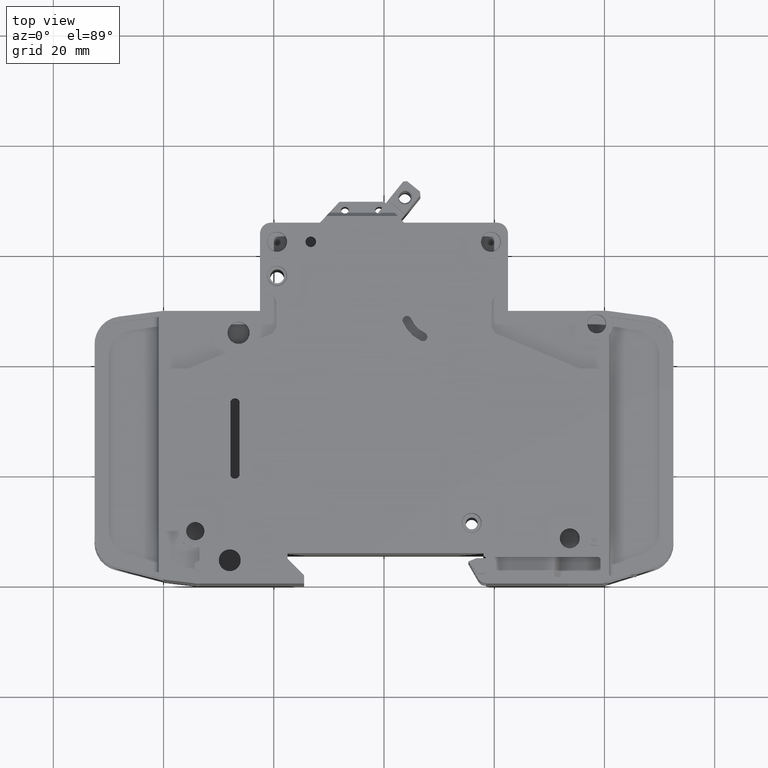
[diagram: clean part render]
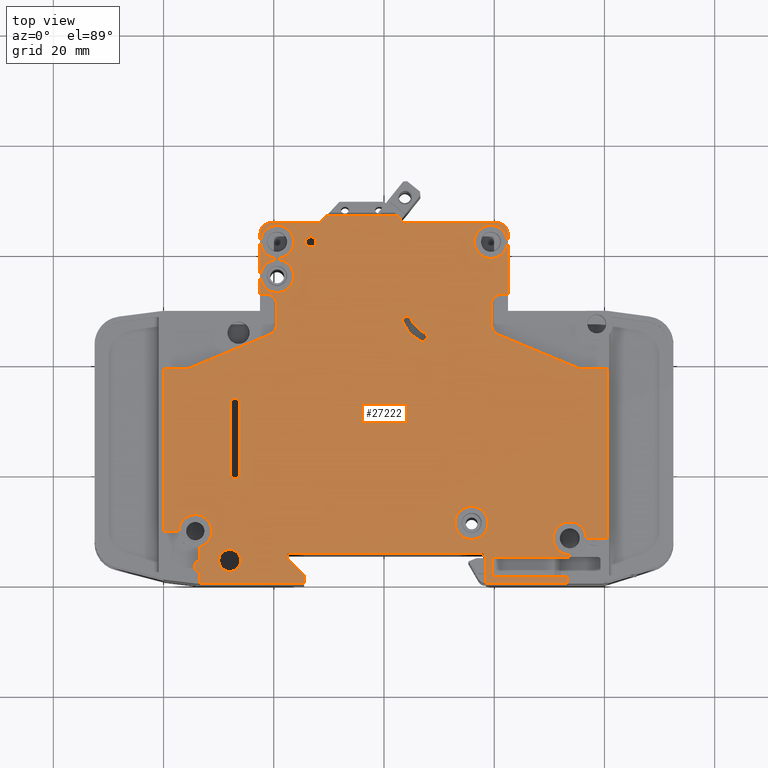
[diagram: same view with one face highlighted and labeled with its STEP entity id]
A machine part, top view. The second image highlights one B-rep face of the part: STEP entity #27222.
In plain terms, the highlighted planar face has unit normal (-0, 0, 1).
Its self-contained STEP definition (entity closure, byte-faithful):
#11 = EDGE_CURVE ( 'NONE', #45778, #3661, #33386, .T. ) ;
#141 = EDGE_CURVE ( 'NONE', #10007, #7064, #37529, .T. ) ;
#259 = VERTEX_POINT ( 'NONE', #40184 ) ;
#307 = DIRECTION ( 'NONE',  ( 1.000000000000000000, 0.0000000000000000000, 0.0000000000000000000 ) ) ;
#329 = DIRECTION ( 'NONE',  ( -0.0000000000000000000, 0.0000000000000000000, 1.000000000000000000 ) ) ;
#478 = DIRECTION ( 'NONE',  ( -0.0000000000000000000, 0.0000000000000000000, 1.000000000000000000 ) ) ;
#500 = VECTOR ( 'NONE', #28106, 1000.000000000000000 ) ;
#640 = EDGE_CURVE ( 'NONE', #25070, #26346, #5549, .T. ) ;
#645 = LINE ( 'NONE', #47615, #38605 ) ;
#883 = VERTEX_POINT ( 'NONE', #39705 ) ;
#934 = CARTESIAN_POINT ( 'NONE',  ( 20.60000000793647200, 55.79999999992195800, 8.750000000000000000 ) ) ;
#1002 = VECTOR ( 'NONE', #46928, 1000.000000000000000 ) ;
#1069 = DIRECTION ( 'NONE',  ( 0.0000000000000000000, -0.0000000000000000000, -1.000000000000000000 ) ) ;
#1110 = ORIENTED_EDGE ( 'NONE', *, *, #36869, .T. ) ;
#1352 = ORIENTED_EDGE ( 'NONE', *, *, #27600, .F. ) ;
#1426 = AXIS2_PLACEMENT_3D ( 'NONE', #3342, #29844, #7120 ) ;
#1539 = VERTEX_POINT ( 'NONE', #30404 ) ;
#1571 = ORIENTED_EDGE ( 'NONE', *, *, #7632, .T. ) ;
#1581 = CARTESIAN_POINT ( 'NONE',  ( 22.50000000000022000, -7.806255641895477900E-014, 8.750000000000000000 ) ) ;
#1702 = CIRCLE ( 'NONE', #30114, 3.000000000000002700 ) ;
#1789 = CIRCLE ( 'NONE', #13920, 3.000000000000002700 ) ;
#1822 = CARTESIAN_POINT ( 'NONE',  ( 52.89999999999999900, 11.00000000000000400, 8.750000000000000000 ) ) ;
#1843 = AXIS2_PLACEMENT_3D ( 'NONE', #2844, #29357, #6642 ) ;
#1879 = DIRECTION ( 'NONE',  ( -0.0000000000000000000, 0.0000000000000000000, 1.000000000000000000 ) ) ;
#1941 = CARTESIAN_POINT ( 'NONE',  ( 59.39999999986778800, 61.99999999992734700, 8.750000000000000000 ) ) ;
#1961 = EDGE_CURVE ( 'NONE', #13797, #883, #5389, .T. ) ;
#1965 = EDGE_CURVE ( 'NONE', #20600, #20111, #34419, .T. ) ;
#1967 = VERTEX_POINT ( 'NONE', #10883 ) ;
#2016 = ORIENTED_EDGE ( 'NONE', *, *, #8085, .T. ) ;
#2142 = CARTESIAN_POINT ( 'NONE',  ( 60.20000000000000300, 1.699999999984503000, 8.750000000000000000 ) ) ;
#2148 = CARTESIAN_POINT ( 'NONE',  ( 17.50000000000000000, 0.0000000000000000000, 8.750000000000000000 ) ) ;
#2171 = ORIENTED_EDGE ( 'NONE', *, *, #41514, .T. ) ;
#2182 = VECTOR ( 'NONE', #45746, 1000.000000000000100 ) ;
#2287 = DIRECTION ( 'NONE',  ( -0.0000000000000000000, 0.0000000000000000000, 1.000000000000000000 ) ) ;
#2380 = EDGE_CURVE ( 'NONE', #32505, #8355, #37430, .T. ) ;
#2602 = DIRECTION ( 'NONE',  ( 1.000000000000000000, 0.0000000000000000000, 0.0000000000000000000 ) ) ;
#2618 = VERTEX_POINT ( 'NONE', #37723 ) ;
#2739 = VERTEX_POINT ( 'NONE', #27296 ) ;
#2770 = VECTOR ( 'NONE', #15982, 1000.000000000000000 ) ;
#2844 = CARTESIAN_POINT ( 'NONE',  ( 58.49999999999850800, 5.299999999972984100, 8.750000000000000000 ) ) ;
#3267 = EDGE_CURVE ( 'NONE', #28935, #8455, #1789, .T. ) ;
#3291 = VERTEX_POINT ( 'NONE', #44075 ) ;
#3293 = CARTESIAN_POINT ( 'NONE',  ( 46.82499999999878100, 46.82500000000527500, 8.750000000000000000 ) ) ;
#3342 = CARTESIAN_POINT ( 'NONE',  ( 20.60000000793647200, 61.99999999992735400, 8.750000000000000000 ) ) ;
#3362 = LINE ( 'NONE', #41924, #2182 ) ;
#3475 = DIRECTION ( 'NONE',  ( -0.0000000000000000000, 0.0000000000000000000, 1.000000000000000000 ) ) ;
#3483 = CARTESIAN_POINT ( 'NONE',  ( 58.49999999999850800, 0.0000000000000000000, 8.750000000000000000 ) ) ;
#3572 = CIRCLE ( 'NONE', #7199, 0.5000000000000004400 ) ;
#3575 = CARTESIAN_POINT ( 'NONE',  ( 28.14999999999816500, 65.50000000000329700, 8.750000000000000000 ) ) ;
#3594 = EDGE_CURVE ( 'NONE', #34752, #15649, #36727, .T. ) ;
#3661 = VERTEX_POINT ( 'NONE', #8684 ) ;
#3782 = ORIENTED_EDGE ( 'NONE', *, *, #30044, .T. ) ;
#3864 = CARTESIAN_POINT ( 'NONE',  ( 19.27250432789876600, 45.18598618730563000, 8.750000000000000000 ) ) ;
#3879 = CARTESIAN_POINT ( 'NONE',  ( 75.12934078732412500, 39.15521354531781400, 8.750000000000000000 ) ) ;
#3977 = EDGE_CURVE ( 'NONE', #37970, #1539, #45595, .T. ) ;
#4018 = AXIS2_PLACEMENT_3D ( 'NONE', #31205, #8503, #35000 ) ;
#4263 = CARTESIAN_POINT ( 'NONE',  ( 44.89747573273771100, 48.04634435755303900, 8.750000000000000000 ) ) ;
#4436 = VECTOR ( 'NONE', #11555, 1000.000000000000000 ) ;
#4453 = VECTOR ( 'NONE', #39500, 1000.000000000000000 ) ;
#4743 = DIRECTION ( 'NONE',  ( 1.000000000000000000, 0.0000000000000000000, 0.0000000000000000000 ) ) ;
#4754 = VECTOR ( 'NONE', #24265, 1000.000000000000100 ) ;
#5221 = CARTESIAN_POINT ( 'NONE',  ( 59.70000000000000300, 0.0000000000000000000, 8.750000000000000000 ) ) ;
#5251 = VECTOR ( 'NONE', #23562, 1000.000000000000000 ) ;
#5389 = CIRCLE ( 'NONE', #45025, 0.7999999999998355100 ) ;
#5545 = VERTEX_POINT ( 'NONE', #3864 ) ;
#5549 = LINE ( 'NONE', #30408, #44678 ) ;
#5683 = DIRECTION ( 'NONE',  ( 0.0000000000000000000, -0.0000000000000000000, -1.000000000000000000 ) ) ;
#5750 = DIRECTION ( 'NONE',  ( 1.000000000000000000, 0.0000000000000000000, 0.0000000000000000000 ) ) ;
#5754 = ORIENTED_EDGE ( 'NONE', *, *, #1965, .F. ) ;
#5757 = ORIENTED_EDGE ( 'NONE', *, *, #14303, .T. ) ;
#5796 = CARTESIAN_POINT ( 'NONE',  ( 42.49473684210713000, 66.70000000000641200, 8.750000000000000000 ) ) ;
#5912 = EDGE_CURVE ( 'NONE', #34752, #28401, #17996, .T. ) ;
#5928 = DIRECTION ( 'NONE',  ( 1.000000000000000000, 0.0000000000000000000, 0.0000000000000000000 ) ) ;
#5985 = ORIENTED_EDGE ( 'NONE', *, *, #3594, .F. ) ;
#5995 = CIRCLE ( 'NONE', #10154, 2.999999999999995600 ) ;
#6025 = LINE ( 'NONE', #6330, #43993 ) ;
#6288 = VECTOR ( 'NONE', #11832, 1000.000000000000000 ) ;
#6304 = CARTESIAN_POINT ( 'NONE',  ( 56.39999999986779500, 61.99999999992734700, 8.750000000000000000 ) ) ;
#6306 = EDGE_CURVE ( 'NONE', #28401, #28682, #42990, .T. ) ;
#6314 = CARTESIAN_POINT ( 'NONE',  ( 4.098154884801252800, 39.00000000000000000, 8.750000000000000000 ) ) ;
#6330 = CARTESIAN_POINT ( 'NONE',  ( 1.050861388915706600E-013, 65.50000000000334000, 8.750000000000000000 ) ) ;
#6437 = CARTESIAN_POINT ( 'NONE',  ( -13.22342051912373200, 31.57831765761954300, 8.750000000000000000 ) ) ;
#6443 = EDGE_CURVE ( 'NONE', #43249, #41727, #26933, .T. ) ;
#6501 = VERTEX_POINT ( 'NONE', #16228 ) ;
#6529 = LINE ( 'NONE', #42190, #43283 ) ;
#6577 = LINE ( 'NONE', #18352, #25510 ) ;
#6642 = DIRECTION ( 'NONE',  ( 1.000000000000000000, 0.0000000000000000000, 0.0000000000000000000 ) ) ;
#6730 = VERTEX_POINT ( 'NONE', #17821 ) ;
#6770 = DIRECTION ( 'NONE',  ( -1.000000000000000000, 0.0000000000000000000, 0.0000000000000000000 ) ) ;
#6783 = CARTESIAN_POINT ( 'NONE',  ( 6.500000000000005300, 4.050000000000018500, 8.750000000000000000 ) ) ;
#6799 = EDGE_CURVE ( 'NONE', #48639, #33489, #41745, .T. ) ;
#6878 = VECTOR ( 'NONE', #6770, 1000.000000000000000 ) ;
#7064 = VERTEX_POINT ( 'NONE', #9065 ) ;
#7111 = CARTESIAN_POINT ( 'NONE',  ( 18.69999999999999600, 50.69999999999998900, 8.750000000000000000 ) ) ;
#7120 = DIRECTION ( 'NONE',  ( 1.000000000000000000, 0.0000000000000000000, 0.0000000000000000000 ) ) ;
#7199 = AXIS2_PLACEMENT_3D ( 'NONE', #11610, #38174, #15411 ) ;
#7227 = FACE_BOUND ( 'NONE', #22827, .T. ) ;
#7271 = VECTOR ( 'NONE', #31732, 1000.000000000000000 ) ;
#7291 = ORIENTED_EDGE ( 'NONE', *, *, #8728, .F. ) ;
#7429 = EDGE_LOOP ( 'NONE', ( #32889, #17226 ) ) ;
#7481 = CARTESIAN_POINT ( 'NONE',  ( 73.70000000000000300, 8.199999999999999300, 8.750000000000000000 ) ) ;
#7632 = EDGE_CURVE ( 'NONE', #18141, #32505, #41328, .T. ) ;
#7806 = VERTEX_POINT ( 'NONE', #44110 ) ;
#7812 = CIRCLE ( 'NONE', #22251, 0.7999999999998355100 ) ;
#7822 = VERTEX_POINT ( 'NONE', #44269 ) ;
#7837 = CIRCLE ( 'NONE', #41261, 2.999999999999999100 ) ;
#7842 = ORIENTED_EDGE ( 'NONE', *, *, #19470, .T. ) ;
#7900 = EDGE_CURVE ( 'NONE', #31549, #37970, #37117, .T. ) ;
#8085 = EDGE_CURVE ( 'NONE', #8455, #24953, #17461, .T. ) ;
#8355 = VERTEX_POINT ( 'NONE', #28633 ) ;
#8356 = DIRECTION ( 'NONE',  ( 0.0000000000000000000, -0.0000000000000000000, -1.000000000000000000 ) ) ;
#8421 = FACE_BOUND ( 'NONE', #45976, .T. ) ;
#8455 = VERTEX_POINT ( 'NONE', #33065 ) ;
#8503 = DIRECTION ( 'NONE',  ( -0.0000000000000000000, 0.0000000000000000000, 1.000000000000000000 ) ) ;
#8508 = LINE ( 'NONE', #3483, #9676 ) ;
#8603 = VERTEX_POINT ( 'NONE', #26412 ) ;
#8611 = EDGE_LOOP ( 'NONE', ( #7291, #48989 ) ) ;
#8626 = DIRECTION ( 'NONE',  ( -0.0000000000000000000, 0.0000000000000000000, 1.000000000000000000 ) ) ;
#8684 = CARTESIAN_POINT ( 'NONE',  ( 43.36107184997595700, 47.73375945476193000, 8.750000000000000000 ) ) ;
#8686 = CARTESIAN_POINT ( 'NONE',  ( 55.89999999999999900, 11.00000000000000400, 8.750000000000000000 ) ) ;
#8698 = VERTEX_POINT ( 'NONE', #34849 ) ;
#8728 = EDGE_CURVE ( 'NONE', #37885, #8698, #18630, .T. ) ;
#8861 = EDGE_CURVE ( 'NONE', #46489, #15649, #43058, .T. ) ;
#9041 = CARTESIAN_POINT ( 'NONE',  ( 80.50000000001294600, 8.200000000000043700, 8.749999999996021000 ) ) ;
#9065 = CARTESIAN_POINT ( 'NONE',  ( 59.70000000000000300, 1.699999999984503000, 8.750000000000000000 ) ) ;
#9118 = CARTESIAN_POINT ( 'NONE',  ( 43.79999999969146500, -2.051483660483898700E-010, 8.750000000000000000 ) ) ;
#9162 = EDGE_LOOP ( 'NONE', ( #42787, #15645, #49074, #5754, #45709, #1110, #32389, #2171, #42298, #34012, #13167, #42118, #17685, #27315, #29315, #5757, #22767, #39153, #46839, #47223, #16866, #7842, #47656, #36892, #37930, #33747, #40916, #3782, #1571, #18534, #13547, #12327, #22258, #10347, #23785, #28632, #40425, #22413, #37263, #45654, #18439, #16948, #2016, #29278, #9353, #39953, #13861, #44810, #13103, #5985, #37264, #46429, #41642, #12614, #32999, #45859, #22636 ) ) ;
#9255 = CIRCLE ( 'NONE', #16709, 0.9499999999999995100 ) ;
#9353 = ORIENTED_EDGE ( 'NONE', *, *, #38176, .T. ) ;
#9477 = VECTOR ( 'NONE', #47237, 1000.000000000000000 ) ;
#9518 = EDGE_CURVE ( 'NONE', #29282, #41727, #44761, .T. ) ;
#9521 = VECTOR ( 'NONE', #26610, 1000.000000000000000 ) ;
#9665 = EDGE_CURVE ( 'NONE', #8355, #19465, #10892, .T. ) ;
#9676 = VECTOR ( 'NONE', #11055, 1000.000000000000000 ) ;
#9722 = DIRECTION ( 'NONE',  ( 0.0000000000000000000, -1.000000000000000000, 0.0000000000000000000 ) ) ;
#9748 = CARTESIAN_POINT ( 'NONE',  ( 73.29999999999999700, 3.469446951953614200E-014, 8.750000000000000000 ) ) ;
#10007 = VERTEX_POINT ( 'NONE', #47067 ) ;
#10089 = DIRECTION ( 'NONE',  ( -0.0000000000000000000, 0.0000000000000000000, 1.000000000000000000 ) ) ;
#10094 = EDGE_CURVE ( 'NONE', #19465, #44086, #8508, .T. ) ;
#10113 = VERTEX_POINT ( 'NONE', #26338 ) ;
#10148 = DIRECTION ( 'NONE',  ( -0.0000000000000000000, 0.0000000000000000000, 1.000000000000000000 ) ) ;
#10154 = AXIS2_PLACEMENT_3D ( 'NONE', #28382, #5683, #32160 ) ;
#10216 = CIRCLE ( 'NONE', #25261, 2.999999999999999100 ) ;
#10253 = VERTEX_POINT ( 'NONE', #42422 ) ;
#10347 = ORIENTED_EDGE ( 'NONE', *, *, #28444, .T. ) ;
#10443 = CARTESIAN_POINT ( 'NONE',  ( 73.29999999999999700, 0.0000000000000000000, 8.750000000000000000 ) ) ;
#10450 = EDGE_CURVE ( 'NONE', #2739, #7064, #25650, .T. ) ;
#10517 = LINE ( 'NONE', #1581, #500 ) ;
#10525 = CARTESIAN_POINT ( 'NONE',  ( 0.0000000000000000000, 9.500000000000147400, 8.750000000000000000 ) ) ;
#10533 = CARTESIAN_POINT ( 'NONE',  ( 0.0000000000000000000, 0.0000000000000000000, 8.750000000000000000 ) ) ;
#10616 = EDGE_CURVE ( 'NONE', #23349, #38556, #27448, .T. ) ;
#10649 = CARTESIAN_POINT ( 'NONE',  ( 43.45146909758702900, 65.66126212262710700, 8.750000000000000000 ) ) ;
#10687 = AXIS2_PLACEMENT_3D ( 'NONE', #37565, #14801, #41384 ) ;
#10711 = DIRECTION ( 'NONE',  ( -0.0000000000000000000, 0.0000000000000000000, 1.000000000000000000 ) ) ;
#10846 = LINE ( 'NONE', #40768, #41148 ) ;
#10859 = EDGE_CURVE ( 'NONE', #2618, #10253, #7837, .T. ) ;
#10883 = CARTESIAN_POINT ( 'NONE',  ( 60.20000000000000300, 4.799999999944546400, 8.750000000000000000 ) ) ;
#10892 = CIRCLE ( 'NONE', #1843, 0.4999999999984877700 ) ;
#10899 = DIRECTION ( 'NONE',  ( 1.000000000000000000, 0.0000000000000000000, 0.0000000000000000000 ) ) ;
#10945 = DIRECTION ( 'NONE',  ( 0.0000000000000000000, -0.0000000000000000000, -1.000000000000000000 ) ) ;
#10967 = DIRECTION ( 'NONE',  ( 1.000000000000000000, 0.0000000000000000000, 0.0000000000000000000 ) ) ;
#11055 = DIRECTION ( 'NONE',  ( 0.0000000000000000000, -1.000000000000000000, 0.0000000000000000000 ) ) ;
#11062 = CARTESIAN_POINT ( 'NONE',  ( -1.589059672629979200E-016, 1.199999999984495500, 8.750000000000000000 ) ) ;
#11194 = CARTESIAN_POINT ( 'NONE',  ( 60.72749567212451200, 45.18598618730563000, 8.750000000000000000 ) ) ;
#11250 = DIRECTION ( 'NONE',  ( 1.000000000000000000, 0.0000000000000000000, 0.0000000000000000000 ) ) ;
#11310 = CARTESIAN_POINT ( 'NONE',  ( 2.750000000000020900, 9.500000000000008900, 8.750000000000000000 ) ) ;
#11555 = DIRECTION ( 'NONE',  ( -1.000000000000000000, 0.0000000000000000000, 0.0000000000000000000 ) ) ;
#11610 = CARTESIAN_POINT ( 'NONE',  ( 60.20000000000000300, 4.299999999944547300, 8.750000000000000000 ) ) ;
#11614 = EDGE_CURVE ( 'NONE', #36135, #29179, #5995, .T. ) ;
#11832 = DIRECTION ( 'NONE',  ( 1.000000000000000000, 2.967290156265997900E-014, 0.0000000000000000000 ) ) ;
#11845 = CARTESIAN_POINT ( 'NONE',  ( 12.94999999999999600, 32.75000000000000000, 8.750000000000000000 ) ) ;
#11876 = CARTESIAN_POINT ( 'NONE',  ( 62.49999999999850100, 0.0000000000000000000, 8.750000000000000000 ) ) ;
#12008 = VERTEX_POINT ( 'NONE', #15512 ) ;
#12038 = VERTEX_POINT ( 'NONE', #15832 ) ;
#12173 = VERTEX_POINT ( 'NONE', #17123 ) ;
#12235 = AXIS2_PLACEMENT_3D ( 'NONE', #15581, #42142, #19343 ) ;
#12265 = CARTESIAN_POINT ( 'NONE',  ( 43.81924165016565800, 66.00000000000177600, 8.750000000000000000 ) ) ;
#12327 = ORIENTED_EDGE ( 'NONE', *, *, #10094, .T. ) ;
#12399 = CIRCLE ( 'NONE', #12235, 1.999999999999998200 ) ;
#12451 = DIRECTION ( 'NONE',  ( 1.000000000000000000, 0.0000000000000000000, 0.0000000000000000000 ) ) ;
#12614 = ORIENTED_EDGE ( 'NONE', *, *, #24548, .T. ) ;
#12714 = EDGE_LOOP ( 'NONE', ( #14050, #33355, #38801, #40626, #13654 ) ) ;
#12917 = CARTESIAN_POINT ( 'NONE',  ( 3.035766082959468500E-013, 52.50000000000034800, 8.750000000000000000 ) ) ;
#12990 = DIRECTION ( 'NONE',  ( -0.0000000000000000000, 0.0000000000000000000, 1.000000000000000000 ) ) ;
#13053 = AXIS2_PLACEMENT_3D ( 'NONE', #32905, #10148, #36706 ) ;
#13103 = ORIENTED_EDGE ( 'NONE', *, *, #8861, .T. ) ;
#13167 = ORIENTED_EDGE ( 'NONE', *, *, #18517, .F. ) ;
#13398 = LINE ( 'NONE', #3293, #22274 ) ;
#13430 = LINE ( 'NONE', #42788, #22299 ) ;
#13547 = ORIENTED_EDGE ( 'NONE', *, *, #9665, .T. ) ;
#13564 = CARTESIAN_POINT ( 'NONE',  ( 58.49999999999850800, 4.799999999974497600, 8.750000000000000000 ) ) ;
#13654 = ORIENTED_EDGE ( 'NONE', *, *, #1961, .T. ) ;
#13776 = EDGE_CURVE ( 'NONE', #10113, #6730, #6577, .T. ) ;
#13797 = VERTEX_POINT ( 'NONE', #22541 ) ;
#13861 = ORIENTED_EDGE ( 'NONE', *, *, #21259, .T. ) ;
#13898 = DIRECTION ( 'NONE',  ( -1.000000000000000000, 1.604368532695653600E-015, 0.0000000000000000000 ) ) ;
#13920 = AXIS2_PLACEMENT_3D ( 'NONE', #17300, #43893, #21110 ) ;
#13941 = CARTESIAN_POINT ( 'NONE',  ( 62.50000000002325600, 52.49999999999998600, 8.750000000000000000 ) ) ;
#13945 = EDGE_CURVE ( 'NONE', #12008, #41286, #48663, .T. ) ;
#14001 = EDGE_CURVE ( 'NONE', #12173, #10113, #46301, .T. ) ;
#14050 = ORIENTED_EDGE ( 'NONE', *, *, #47859, .T. ) ;
#14094 = VECTOR ( 'NONE', #45937, 1000.000000000000000 ) ;
#14100 = CARTESIAN_POINT ( 'NONE',  ( 29.50526315788999600, 66.70000000000675300, 8.750000000000000000 ) ) ;
#14186 = CIRCLE ( 'NONE', #26983, 0.8500000000000000900 ) ;
#14223 = CARTESIAN_POINT ( 'NONE',  ( 49.50000000000064700, 49.99999999999789700, 8.750000000000000000 ) ) ;
#14258 = DIRECTION ( 'NONE',  ( 0.0000000000000000000, 1.000000000000000000, -0.0000000000000000000 ) ) ;
#14303 = EDGE_CURVE ( 'NONE', #24595, #1539, #6529, .T. ) ;
#14471 = VERTEX_POINT ( 'NONE', #16749 ) ;
#14556 = AXIS2_PLACEMENT_3D ( 'NONE', #39802, #17006, #43620 ) ;
#14768 = LINE ( 'NONE', #16616, #4754 ) ;
#14801 = DIRECTION ( 'NONE',  ( 0.0000000000000000000, -0.0000000000000000000, -1.000000000000000000 ) ) ;
#14868 = DIRECTION ( 'NONE',  ( 1.000000000000000000, 1.324216393875425600E-016, 0.0000000000000000000 ) ) ;
#15003 = AXIS2_PLACEMENT_3D ( 'NONE', #44045, #21235, #47867 ) ;
#15014 = CIRCLE ( 'NONE', #30636, 1.800000000000398600 ) ;
#15069 = CARTESIAN_POINT ( 'NONE',  ( 22.50000000000024200, 5.500000000000264700, 8.750000000000000000 ) ) ;
#15075 = AXIS2_PLACEMENT_3D ( 'NONE', #44811, #22038, #48615 ) ;
#15115 = CARTESIAN_POINT ( 'NONE',  ( 5.750000000000020400, 9.500000000000001800, 8.750000000000000000 ) ) ;
#15276 = LINE ( 'NONE', #46175, #5251 ) ;
#15411 = DIRECTION ( 'NONE',  ( 1.000000000000000000, 0.0000000000000000000, 0.0000000000000000000 ) ) ;
#15512 = CARTESIAN_POINT ( 'NONE',  ( 20.50000000000079600, 50.69999999999918600, 8.750000000000000000 ) ) ;
#15581 = CARTESIAN_POINT ( 'NONE',  ( 19.50000000000000000, 63.50000000000330400, 8.750000000000000000 ) ) ;
#15645 = ORIENTED_EDGE ( 'NONE', *, *, #25941, .T. ) ;
#15649 = VERTEX_POINT ( 'NONE', #33504 ) ;
#15653 = VERTEX_POINT ( 'NONE', #37296 ) ;
#15658 = DIRECTION ( 'NONE',  ( 1.000000000000000000, 0.0000000000000000000, 0.0000000000000000000 ) ) ;
#15827 = EDGE_CURVE ( 'NONE', #38239, #23349, #34301, .T. ) ;
#15832 = CARTESIAN_POINT ( 'NONE',  ( 4.870659212699157700, 39.15521354531782800, 8.750000000000000000 ) ) ;
#15925 = AXIS2_PLACEMENT_3D ( 'NONE', #12265, #38862, #16059 ) ;
#15982 = DIRECTION ( 'NONE',  ( 0.0000000000000000000, 1.000000000000000000, -0.0000000000000000000 ) ) ;
#16013 = LINE ( 'NONE', #46881, #27344 ) ;
#16059 = DIRECTION ( 'NONE',  ( 1.000000000000000000, 0.0000000000000000000, 0.0000000000000000000 ) ) ;
#16228 = CARTESIAN_POINT ( 'NONE',  ( 19.50000000000000000, 65.50000000000331100, 8.750000000000000000 ) ) ;
#16241 = ORIENTED_EDGE ( 'NONE', *, *, #15827, .T. ) ;
#16481 = CARTESIAN_POINT ( 'NONE',  ( -10.82500000000569100, 10.82500000000719200, 8.750000000000000000 ) ) ;
#16556 = VERTEX_POINT ( 'NONE', #3879 ) ;
#16616 = CARTESIAN_POINT ( 'NONE',  ( -17.27440989133155500, 15.91064068936652200, 8.750000000000000000 ) ) ;
#16709 = AXIS2_PLACEMENT_3D ( 'NONE', #33491, #10711, #37281 ) ;
#16749 = CARTESIAN_POINT ( 'NONE',  ( 28.19999999999816300, 65.45000000000330000, 8.750000000000000000 ) ) ;
#16866 = ORIENTED_EDGE ( 'NONE', *, *, #17188, .F. ) ;
#16948 = ORIENTED_EDGE ( 'NONE', *, *, #3267, .T. ) ;
#17006 = DIRECTION ( 'NONE',  ( 0.0000000000000000000, -0.0000000000000000000, -1.000000000000000000 ) ) ;
#17123 = CARTESIAN_POINT ( 'NONE',  ( 17.50000000000000000, 63.50000000000330400, 8.750000000000000000 ) ) ;
#17188 = EDGE_CURVE ( 'NONE', #30870, #15653, #22836, .T. ) ;
#17226 = ORIENTED_EDGE ( 'NONE', *, *, #11614, .T. ) ;
#17255 = FACE_BOUND ( 'NONE', #31161, .T. ) ;
#17270 = LINE ( 'NONE', #6437, #26198 ) ;
#17300 = CARTESIAN_POINT ( 'NONE',  ( 73.70000000000000300, 8.199999999999999300, 8.750000000000000000 ) ) ;
#17372 = AXIS2_PLACEMENT_3D ( 'NONE', #8686, #35202, #12451 ) ;
#17413 = CARTESIAN_POINT ( 'NONE',  ( 20.50000000000082100, 47.03077264198781600, 8.750000000000000000 ) ) ;
#17453 = AXIS2_PLACEMENT_3D ( 'NONE', #45701, #22927, #307 ) ;
#17461 = LINE ( 'NONE', #30760, #6288 ) ;
#17521 = CIRCLE ( 'NONE', #17372, 3.000000000000002700 ) ;
#17527 = CARTESIAN_POINT ( 'NONE',  ( 59.50000000002247400, 47.03077264198788000, 8.750000000000000000 ) ) ;
#17592 = DIRECTION ( 'NONE',  ( 0.0000000000000000000, -1.000000000000000000, 0.0000000000000000000 ) ) ;
#17685 = ORIENTED_EDGE ( 'NONE', *, *, #37581, .F. ) ;
#17809 = ORIENTED_EDGE ( 'NONE', *, *, #20547, .T. ) ;
#17821 = CARTESIAN_POINT ( 'NONE',  ( 18.69999999999999600, 52.49999999999998600, 8.750000000000000000 ) ) ;
#17969 = DIRECTION ( 'NONE',  ( -0.6774757547513893300, 0.7355451051594560400, 0.0000000000000000000 ) ) ;
#17989 = DIRECTION ( 'NONE',  ( 1.000000000000000000, 4.205390244792413100E-015, 0.0000000000000000000 ) ) ;
#17996 = LINE ( 'NONE', #12917, #37064 ) ;
#17999 = DIRECTION ( 'NONE',  ( -3.469446951472634300E-014, 1.000000000000000000, -0.0000000000000000000 ) ) ;
#18141 = VERTEX_POINT ( 'NONE', #15069 ) ;
#18298 = ORIENTED_EDGE ( 'NONE', *, *, #10616, .T. ) ;
#18352 = CARTESIAN_POINT ( 'NONE',  ( 0.0000000000000000000, 52.49999999999998600, 8.750000000000000000 ) ) ;
#18392 = FACE_OUTER_BOUND ( 'NONE', #9162, .T. ) ;
#18399 = ORIENTED_EDGE ( 'NONE', *, *, #19111, .F. ) ;
#18439 = ORIENTED_EDGE ( 'NONE', *, *, #25857, .T. ) ;
#18445 = DIRECTION ( 'NONE',  ( 0.0000000000000000000, -0.0000000000000000000, -1.000000000000000000 ) ) ;
#18517 = EDGE_CURVE ( 'NONE', #12008, #6730, #15014, .T. ) ;
#18534 = ORIENTED_EDGE ( 'NONE', *, *, #2380, .T. ) ;
#18630 = CIRCLE ( 'NONE', #4018, 0.9499999999563018000 ) ;
#18852 = DIRECTION ( 'NONE',  ( 1.000000000000000000, 0.0000000000000000000, 0.0000000000000000000 ) ) ;
#18860 = CARTESIAN_POINT ( 'NONE',  ( 0.0000000000000000000, 4.799999999944547300, 8.750000000000000000 ) ) ;
#19111 = EDGE_CURVE ( 'NONE', #33721, #38789, #30406, .T. ) ;
#19129 = EDGE_CURVE ( 'NONE', #33489, #48639, #10216, .T. ) ;
#19324 = CARTESIAN_POINT ( 'NONE',  ( 62.49999999999850100, 63.50000000000330400, 8.750000000000000000 ) ) ;
#19343 = DIRECTION ( 'NONE',  ( 1.000000000000000000, 0.0000000000000000000, 0.0000000000000000000 ) ) ;
#19346 = DIRECTION ( 'NONE',  ( -0.0000000000000000000, 0.0000000000000000000, 1.000000000000000000 ) ) ;
#19381 = LINE ( 'NONE', #45616, #28396 ) ;
#19465 = VERTEX_POINT ( 'NONE', #13564 ) ;
#19470 = EDGE_CURVE ( 'NONE', #30870, #8603, #25015, .T. ) ;
#19542 = LINE ( 'NONE', #37891, #9521 ) ;
#19543 = DIRECTION ( 'NONE',  ( -0.0000000000000000000, 0.0000000000000000000, 1.000000000000000000 ) ) ;
#19614 = CARTESIAN_POINT ( 'NONE',  ( 13.79999999999999700, 32.75000000000000000, 8.750000000000000000 ) ) ;
#19857 = EDGE_CURVE ( 'NONE', #7806, #29282, #35412, .T. ) ;
#19960 = VERTEX_POINT ( 'NONE', #28686 ) ;
#19987 = DIRECTION ( 'NONE',  ( 1.591098326534340900E-011, -1.000000000000000000, 0.0000000000000000000 ) ) ;
#20111 = VERTEX_POINT ( 'NONE', #49021 ) ;
#20262 = DIRECTION ( 'NONE',  ( -0.7071067811864946200, 0.7071067811866005300, 0.0000000000000000000 ) ) ;
#20317 = CARTESIAN_POINT ( 'NONE',  ( 3.520755674482790200E-014, 5.500000000000409500, 8.750000000000000000 ) ) ;
#20488 = PLANE ( 'NONE',  #39711 ) ;
#20520 = LINE ( 'NONE', #18860, #39591 ) ;
#20522 = DIRECTION ( 'NONE',  ( 1.000000000000000000, -5.782411586589425900E-015, 0.0000000000000000000 ) ) ;
#20547 = EDGE_CURVE ( 'NONE', #3291, #48340, #48440, .T. ) ;
#20574 = VECTOR ( 'NONE', #21956, 1000.000000000000000 ) ;
#20600 = VERTEX_POINT ( 'NONE', #33049 ) ;
#20689 = DIRECTION ( 'NONE',  ( -1.891104918521060300E-015, 1.000000000000000000, -0.0000000000000000000 ) ) ;
#20703 = ORIENTED_EDGE ( 'NONE', *, *, #19129, .T. ) ;
#20762 = VERTEX_POINT ( 'NONE', #22864 ) ;
#20912 = CARTESIAN_POINT ( 'NONE',  ( 60.49999999999850100, 65.50000000000328300, 8.750000000000000000 ) ) ;
#21036 = AXIS2_PLACEMENT_3D ( 'NONE', #22955, #329, #26818 ) ;
#21111 = EDGE_CURVE ( 'NONE', #8603, #26346, #9255, .T. ) ;
#21110 = DIRECTION ( 'NONE',  ( 1.000000000000000000, 0.0000000000000000000, 0.0000000000000000000 ) ) ;
#21157 = CARTESIAN_POINT ( 'NONE',  ( 70.70000000000000300, 8.199999999999999300, 8.750000000000000000 ) ) ;
#21181 = EDGE_CURVE ( 'NONE', #2739, #44458, #28280, .T. ) ;
#21235 = DIRECTION ( 'NONE',  ( -0.0000000000000000000, 0.0000000000000000000, 1.000000000000000000 ) ) ;
#21259 = EDGE_CURVE ( 'NONE', #16556, #45510, #3362, .T. ) ;
#21593 = CIRCLE ( 'NONE', #30019, 2.999999999999999100 ) ;
#21618 = CIRCLE ( 'NONE', #46143, 2.000000000000008900 ) ;
#21621 = DIRECTION ( 'NONE',  ( -0.9223932273411088500, -0.3862521639489592300, 0.0000000000000000000 ) ) ;
#21765 = LINE ( 'NONE', #10533, #20574 ) ;
#21787 = LINE ( 'NONE', #40802, #42020 ) ;
#21956 = DIRECTION ( 'NONE',  ( 1.000000000000000000, 0.0000000000000000000, 0.0000000000000000000 ) ) ;
#22038 = DIRECTION ( 'NONE',  ( -0.0000000000000000000, 0.0000000000000000000, 1.000000000000000000 ) ) ;
#22251 = AXIS2_PLACEMENT_3D ( 'NONE', #23710, #1069, #27589 ) ;
#22258 = ORIENTED_EDGE ( 'NONE', *, *, #46470, .F. ) ;
#22274 = VECTOR ( 'NONE', #29790, 1000.000000000000000 ) ;
#22299 = VECTOR ( 'NONE', #19987, 1000.000000000000000 ) ;
#22413 = ORIENTED_EDGE ( 'NONE', *, *, #41499, .T. ) ;
#22541 = CARTESIAN_POINT ( 'NONE',  ( 47.38690869129654000, 45.46846106481483200, 8.750000000000000000 ) ) ;
#22636 = ORIENTED_EDGE ( 'NONE', *, *, #6443, .F. ) ;
#22738 = DIRECTION ( 'NONE',  ( 1.000000000000000000, 0.0000000000000000000, 0.0000000000000000000 ) ) ;
#22767 = ORIENTED_EDGE ( 'NONE', *, *, #3977, .F. ) ;
#22827 = EDGE_LOOP ( 'NONE', ( #40180, #17809 ) ) ;
#22836 = LINE ( 'NONE', #31131, #2770 ) ;
#22864 = CARTESIAN_POINT ( 'NONE',  ( 73.70000000000001700, 4.799999999944547300, 8.750000000000000000 ) ) ;
#22927 = DIRECTION ( 'NONE',  ( 0.0000000000000000000, -0.0000000000000000000, -1.000000000000000000 ) ) ;
#22953 = ORIENTED_EDGE ( 'NONE', *, *, #6799, .T. ) ;
#22955 = CARTESIAN_POINT ( 'NONE',  ( 75.90184511522200200, 41.00000000000000000, 8.750000000000000000 ) ) ;
#23105 = CARTESIAN_POINT ( 'NONE',  ( 12.00000000000000000, 4.200000000000000200, 8.750000000000000000 ) ) ;
#23349 = VERTEX_POINT ( 'NONE', #30919 ) ;
#23523 = VERTEX_POINT ( 'NONE', #20912 ) ;
#23562 = DIRECTION ( 'NONE',  ( 0.0000000000000000000, 1.000000000000000000, -0.0000000000000000000 ) ) ;
#23593 = EDGE_CURVE ( 'NONE', #46489, #45510, #37498, .T. ) ;
#23710 = CARTESIAN_POINT ( 'NONE',  ( 44.16107184997579100, 47.73375945476193000, 8.750000000000000000 ) ) ;
#23785 = ORIENTED_EDGE ( 'NONE', *, *, #21181, .F. ) ;
#23835 = EDGE_CURVE ( 'NONE', #3661, #39406, #7812, .T. ) ;
#24105 = CIRCLE ( 'NONE', #42291, 2.999999999999995600 ) ;
#24259 = VECTOR ( 'NONE', #14258, 1000.000000000000000 ) ;
#24265 = DIRECTION ( 'NONE',  ( -0.6774757547513802200, -0.7355451051594644700, 0.0000000000000000000 ) ) ;
#24542 = CARTESIAN_POINT ( 'NONE',  ( 60.49999999999850100, 63.50000000000329000, 8.750000000000000000 ) ) ;
#24548 = EDGE_CURVE ( 'NONE', #23523, #7806, #645, .T. ) ;
#24595 = VERTEX_POINT ( 'NONE', #6314 ) ;
#24666 = CIRCLE ( 'NONE', #21036, 1.999999999999988000 ) ;
#24737 = CARTESIAN_POINT ( 'NONE',  ( 22.50000000000024200, 4.500000000000234500, 8.750000000000000000 ) ) ;
#24937 = CARTESIAN_POINT ( 'NONE',  ( 4.098154884801252800, 41.00000000000000000, 8.750000000000000000 ) ) ;
#24953 = VERTEX_POINT ( 'NONE', #9041 ) ;
#25015 = CIRCLE ( 'NONE', #44685, 0.9499999999999995100 ) ;
#25070 = VERTEX_POINT ( 'NONE', #47390 ) ;
#25084 = EDGE_CURVE ( 'NONE', #24595, #12038, #36144, .T. ) ;
#25087 = AXIS2_PLACEMENT_3D ( 'NONE', #23105, #478, #26974 ) ;
#25239 = EDGE_LOOP ( 'NONE', ( #18298, #25448, #46716, #16241 ) ) ;
#25243 = DIRECTION ( 'NONE',  ( 0.0000000000000000000, -0.0000000000000000000, -1.000000000000000000 ) ) ;
#25261 = AXIS2_PLACEMENT_3D ( 'NONE', #33689, #10945, #37507 ) ;
#25283 = VECTOR ( 'NONE', #28907, 1000.000000000000000 ) ;
#25297 = CARTESIAN_POINT ( 'NONE',  ( 25.50000000000000400, 0.0000000000000000000, 8.750000000000000000 ) ) ;
#25382 = VECTOR ( 'NONE', #36210, 1000.000000000000000 ) ;
#25448 = ORIENTED_EDGE ( 'NONE', *, *, #29974, .T. ) ;
#25510 = VECTOR ( 'NONE', #10967, 1000.000000000000000 ) ;
#25650 = CIRCLE ( 'NONE', #26939, 0.5000000000000004400 ) ;
#25857 = EDGE_CURVE ( 'NONE', #42514, #28935, #1702, .T. ) ;
#25858 = VECTOR ( 'NONE', #14868, 1000.000000000000000 ) ;
#25941 = EDGE_CURVE ( 'NONE', #32842, #39739, #19381, .T. ) ;
#26150 = CARTESIAN_POINT ( 'NONE',  ( 28.18075834983112000, 66.00000000000179100, 8.750000000000000000 ) ) ;
#26198 = VECTOR ( 'NONE', #21621, 999.9999999999998900 ) ;
#26238 = EDGE_CURVE ( 'NONE', #43249, #32842, #10846, .T. ) ;
#26338 = CARTESIAN_POINT ( 'NONE',  ( 17.50000000000000000, 52.49999999999998600, 8.750000000000000000 ) ) ;
#26346 = VERTEX_POINT ( 'NONE', #30000 ) ;
#26412 = CARTESIAN_POINT ( 'NONE',  ( 5.550000000000006000, 3.100000000000019200, 8.750000000000000000 ) ) ;
#26485 = CIRCLE ( 'NONE', #14556, 2.999999999999999100 ) ;
#26610 = DIRECTION ( 'NONE',  ( 0.0000000000000000000, 1.000000000000000000, -0.0000000000000000000 ) ) ;
#26818 = DIRECTION ( 'NONE',  ( 1.000000000000000000, 0.0000000000000000000, 0.0000000000000000000 ) ) ;
#26933 = CIRCLE ( 'NONE', #15925, 0.4999999999984947000 ) ;
#26939 = AXIS2_PLACEMENT_3D ( 'NONE', #2142, #28666, #5928 ) ;
#26943 = LINE ( 'NONE', #30487, #4436 ) ;
#26974 = DIRECTION ( 'NONE',  ( 1.000000000000000000, 0.0000000000000000000, 0.0000000000000000000 ) ) ;
#26983 = AXIS2_PLACEMENT_3D ( 'NONE', #11845, #38425, #15658 ) ;
#27136 = CARTESIAN_POINT ( 'NONE',  ( 25.50000000000000400, 0.0000000000000000000, 8.750000000000000000 ) ) ;
#27222 = ADVANCED_FACE ( 'NONE', ( #18392, #27398, #8421, #37475, #47602, #17255, #7227, #46396, #36284 ), #20488, .T. ) ;
#27296 = CARTESIAN_POINT ( 'NONE',  ( 60.20000000000000300, 1.199999999984503500, 8.750000000000000000 ) ) ;
#27315 = ORIENTED_EDGE ( 'NONE', *, *, #32947, .T. ) ;
#27344 = VECTOR ( 'NONE', #20262, 999.9999999999998900 ) ;
#27354 = VECTOR ( 'NONE', #17592, 1000.000000000000000 ) ;
#27398 = FACE_BOUND ( 'NONE', #12714, .T. ) ;
#27436 = DIRECTION ( 'NONE',  ( 0.0000000000000000000, -0.0000000000000000000, -1.000000000000000000 ) ) ;
#27448 = CIRCLE ( 'NONE', #10687, 0.8500000000000000900 ) ;
#27589 = DIRECTION ( 'NONE',  ( 1.000000000000000000, -8.673617379885818300E-015, 0.0000000000000000000 ) ) ;
#27600 = EDGE_CURVE ( 'NONE', #38789, #33721, #42186, .T. ) ;
#27730 = EDGE_CURVE ( 'NONE', #19960, #28326, #16013, .T. ) ;
#27856 = AXIS2_PLACEMENT_3D ( 'NONE', #24937, #2287, #28820 ) ;
#28106 = DIRECTION ( 'NONE',  ( 3.469446951953511600E-015, 1.000000000000000000, 0.0000000000000000000 ) ) ;
#28144 = AXIS2_PLACEMENT_3D ( 'NONE', #14223, #40795, #17989 ) ;
#28201 = DIRECTION ( 'NONE',  ( 1.000000000000000000, 0.0000000000000000000, 0.0000000000000000000 ) ) ;
#28280 = LINE ( 'NONE', #11062, #25858 ) ;
#28326 = VERTEX_POINT ( 'NONE', #24737 ) ;
#28382 = CARTESIAN_POINT ( 'NONE',  ( 59.39999999986778800, 61.99999999992734700, 8.750000000000000000 ) ) ;
#28396 = VECTOR ( 'NONE', #30508, 1000.000000000000000 ) ;
#28401 = VERTEX_POINT ( 'NONE', #13941 ) ;
#28407 = DIRECTION ( 'NONE',  ( 1.000000000000000000, 0.0000000000000000000, 0.0000000000000000000 ) ) ;
#28444 = EDGE_CURVE ( 'NONE', #29114, #44458, #44488, .T. ) ;
#28457 = DIRECTION ( 'NONE',  ( 0.0000000000000000000, -0.0000000000000000000, -1.000000000000000000 ) ) ;
#28632 = ORIENTED_EDGE ( 'NONE', *, *, #10450, .T. ) ;
#28633 = CARTESIAN_POINT ( 'NONE',  ( 58.00000000000000700, 5.299999999972984100, 8.750000000000000000 ) ) ;
#28666 = DIRECTION ( 'NONE',  ( 0.0000000000000000000, -0.0000000000000000000, -1.000000000000000000 ) ) ;
#28682 = VERTEX_POINT ( 'NONE', #19324 ) ;
#28686 = CARTESIAN_POINT ( 'NONE',  ( 25.50000000000000400, 1.500000000000023300, 8.750000000000000000 ) ) ;
#28820 = DIRECTION ( 'NONE',  ( 1.000000000000000000, 0.0000000000000000000, 0.0000000000000000000 ) ) ;
#28856 = CARTESIAN_POINT ( 'NONE',  ( 62.39999999986778100, 61.99999999992734700, 8.750000000000000000 ) ) ;
#28879 = CIRCLE ( 'NONE', #17453, 5.000000000000087900 ) ;
#28907 = DIRECTION ( 'NONE',  ( -1.000000000000000000, 1.112223995140649500E-013, 0.0000000000000000000 ) ) ;
#28935 = VERTEX_POINT ( 'NONE', #21157 ) ;
#29038 = CARTESIAN_POINT ( 'NONE',  ( 25.75000000011160900, 61.99999999992734700, 8.750000000000000000 ) ) ;
#29114 = VERTEX_POINT ( 'NONE', #9748 ) ;
#29179 = VERTEX_POINT ( 'NONE', #6304 ) ;
#29278 = ORIENTED_EDGE ( 'NONE', *, *, #40922, .T. ) ;
#29282 = VERTEX_POINT ( 'NONE', #37261 ) ;
#29315 = ORIENTED_EDGE ( 'NONE', *, *, #25084, .F. ) ;
#29357 = DIRECTION ( 'NONE',  ( -0.0000000000000000000, 0.0000000000000000000, 1.000000000000000000 ) ) ;
#29591 = EDGE_CURVE ( 'NONE', #8698, #37885, #43245, .T. ) ;
#29626 = CARTESIAN_POINT ( 'NONE',  ( 61.30000000002327500, 52.49999999999999300, 8.750000000000000000 ) ) ;
#29790 = DIRECTION ( 'NONE',  ( -0.7071067811865965300, 0.7071067811864985000, 0.0000000000000000000 ) ) ;
#29844 = DIRECTION ( 'NONE',  ( 0.0000000000000000000, -0.0000000000000000000, -1.000000000000000000 ) ) ;
#29974 = EDGE_CURVE ( 'NONE', #38556, #259, #15276, .T. ) ;
#29998 = DIRECTION ( 'NONE',  ( 1.000000000000000000, 0.0000000000000000000, 0.0000000000000000000 ) ) ;
#30000 = CARTESIAN_POINT ( 'NONE',  ( 6.500000000000005300, 2.150000000000019900, 8.750000000000000000 ) ) ;
#30019 = AXIS2_PLACEMENT_3D ( 'NONE', #15115, #41680, #18852 ) ;
#30044 = EDGE_CURVE ( 'NONE', #28326, #18141, #10517, .T. ) ;
#30114 = AXIS2_PLACEMENT_3D ( 'NONE', #7481, #34008, #11250 ) ;
#30404 = CARTESIAN_POINT ( 'NONE',  ( 1.719415896554027400E-015, 39.00000000000000000, 8.749999999996021000 ) ) ;
#30406 = CIRCLE ( 'NONE', #15075, 2.000000000000000000 ) ;
#30408 = CARTESIAN_POINT ( 'NONE',  ( 6.500000000000005300, 0.0000000000000000000, 8.750000000000000000 ) ) ;
#30487 = CARTESIAN_POINT ( 'NONE',  ( 0.0000000000000000000, 39.00000000000000000, 8.750000000000000000 ) ) ;
#30508 = DIRECTION ( 'NONE',  ( -1.000000000000000000, 2.618450529772908900E-014, 0.0000000000000000000 ) ) ;
#30636 = AXIS2_PLACEMENT_3D ( 'NONE', #7111, #33640, #10899 ) ;
#30760 = CARTESIAN_POINT ( 'NONE',  ( -2.433177928137422200E-013, 8.199999999997654500, 8.750000000000000000 ) ) ;
#30806 = CARTESIAN_POINT ( 'NONE',  ( 13.79999999999999900, 0.0000000000000000000, 8.750000000000000000 ) ) ;
#30870 = VERTEX_POINT ( 'NONE', #6783 ) ;
#30901 = CARTESIAN_POINT ( 'NONE',  ( 10.00000000000000000, 4.200000000000000200, 8.750000000000000000 ) ) ;
#30919 = CARTESIAN_POINT ( 'NONE',  ( 13.79999999999999900, 19.84999999999999800, 8.750000000000000000 ) ) ;
#30991 = EDGE_CURVE ( 'NONE', #16556, #7822, #24666, .T. ) ;
#31072 = CARTESIAN_POINT ( 'NONE',  ( 44.16107184997579100, 47.73375945476193000, 8.750000000000000000 ) ) ;
#31105 = CIRCLE ( 'NONE', #39261, 1.999999999999994900 ) ;
#31131 = CARTESIAN_POINT ( 'NONE',  ( 6.500000000000005300, 0.0000000000000000000, 8.750000000000000000 ) ) ;
#31161 = EDGE_LOOP ( 'NONE', ( #1352, #18399 ) ) ;
#31205 = CARTESIAN_POINT ( 'NONE',  ( 26.70000000006790900, 61.99999999992734700, 8.750000000000000000 ) ) ;
#31510 = VERTEX_POINT ( 'NONE', #3575 ) ;
#31549 = VERTEX_POINT ( 'NONE', #11310 ) ;
#31732 = DIRECTION ( 'NONE',  ( 0.0000000000000000000, -1.000000000000000000, 0.0000000000000000000 ) ) ;
#31820 = CARTESIAN_POINT ( 'NONE',  ( 73.69999999999998900, 5.199999999999993100, 8.750000000000000000 ) ) ;
#31848 = CARTESIAN_POINT ( 'NONE',  ( 43.79999999999825600, 65.50037037828451500, 8.750000000000000000 ) ) ;
#32018 = VECTOR ( 'NONE', #42231, 1000.000000000000000 ) ;
#32160 = DIRECTION ( 'NONE',  ( 1.000000000000000000, 0.0000000000000000000, 0.0000000000000000000 ) ) ;
#32335 = CIRCLE ( 'NONE', #15003, 0.1999999999999875200 ) ;
#32389 = ORIENTED_EDGE ( 'NONE', *, *, #34121, .T. ) ;
#32505 = VERTEX_POINT ( 'NONE', #48744 ) ;
#32842 = VERTEX_POINT ( 'NONE', #5796 ) ;
#32851 = CARTESIAN_POINT ( 'NONE',  ( 6.500000000000005300, 3.100000000000019200, 8.750000000000000000 ) ) ;
#32889 = ORIENTED_EDGE ( 'NONE', *, *, #36581, .T. ) ;
#32897 = VECTOR ( 'NONE', #34639, 1000.000000000000000 ) ;
#32905 = CARTESIAN_POINT ( 'NONE',  ( 61.50000000002243900, 47.03077264198788000, 8.750000000000000000 ) ) ;
#32947 = EDGE_CURVE ( 'NONE', #5545, #12038, #17270, .T. ) ;
#32961 = VECTOR ( 'NONE', #20689, 1000.000000000000000 ) ;
#32999 = ORIENTED_EDGE ( 'NONE', *, *, #19857, .T. ) ;
#33049 = CARTESIAN_POINT ( 'NONE',  ( 28.19999999999736300, 65.50037037828450100, 8.750000000000000000 ) ) ;
#33065 = CARTESIAN_POINT ( 'NONE',  ( 76.70000000000000300, 8.199999999999931800, 8.750000000000000000 ) ) ;
#33214 = LINE ( 'NONE', #27136, #32018 ) ;
#33355 = ORIENTED_EDGE ( 'NONE', *, *, #11, .T. ) ;
#33386 = CIRCLE ( 'NONE', #43095, 0.7999999999998355100 ) ;
#33405 = ORIENTED_EDGE ( 'NONE', *, *, #44165, .T. ) ;
#33489 = VERTEX_POINT ( 'NONE', #40049 ) ;
#33491 = CARTESIAN_POINT ( 'NONE',  ( 6.500000000000005300, 3.100000000000019200, 8.750000000000000000 ) ) ;
#33504 = CARTESIAN_POINT ( 'NONE',  ( 59.50000000002246700, 50.69999999999919300, 8.750000000000000000 ) ) ;
#33541 = EDGE_LOOP ( 'NONE', ( #33405, #45351 ) ) ;
#33563 = CARTESIAN_POINT ( 'NONE',  ( 73.29999999999999700, 1.199999999984510300, 8.750000000000000000 ) ) ;
#33640 = DIRECTION ( 'NONE',  ( -0.0000000000000000000, 0.0000000000000000000, 1.000000000000000000 ) ) ;
#33689 = CARTESIAN_POINT ( 'NONE',  ( 20.60000000793647200, 61.99999999992735400, 8.750000000000000000 ) ) ;
#33721 = VERTEX_POINT ( 'NONE', #45482 ) ;
#33747 = ORIENTED_EDGE ( 'NONE', *, *, #34837, .T. ) ;
#34008 = DIRECTION ( 'NONE',  ( 0.0000000000000000000, -0.0000000000000000000, -1.000000000000000000 ) ) ;
#34012 = ORIENTED_EDGE ( 'NONE', *, *, #13776, .T. ) ;
#34121 = EDGE_CURVE ( 'NONE', #31510, #6501, #6025, .T. ) ;
#34254 = VECTOR ( 'NONE', #46908, 1000.000000000000000 ) ;
#34301 = LINE ( 'NONE', #30806, #14094 ) ;
#34374 = AXIS2_PLACEMENT_3D ( 'NONE', #35731, #12990, #39582 ) ;
#34419 = CIRCLE ( 'NONE', #47621, 0.4999999999985189600 ) ;
#34639 = DIRECTION ( 'NONE',  ( 0.0000000000000000000, 1.000000000000000000, -0.0000000000000000000 ) ) ;
#34752 = VERTEX_POINT ( 'NONE', #29626 ) ;
#34811 = EDGE_CURVE ( 'NONE', #259, #38239, #14186, .T. ) ;
#34837 = EDGE_CURVE ( 'NONE', #38538, #19960, #33214, .T. ) ;
#34849 = CARTESIAN_POINT ( 'NONE',  ( 27.65000000002421000, 61.99999999992734700, 8.750000000000000000 ) ) ;
#34869 = DIRECTION ( 'NONE',  ( 1.000000000000000000, 0.0000000000000000000, 0.0000000000000000000 ) ) ;
#35000 = DIRECTION ( 'NONE',  ( 1.000000000000000000, 0.0000000000000000000, 0.0000000000000000000 ) ) ;
#35001 = EDGE_CURVE ( 'NONE', #39739, #20111, #14768, .T. ) ;
#35202 = DIRECTION ( 'NONE',  ( 0.0000000000000000000, -0.0000000000000000000, -1.000000000000000000 ) ) ;
#35412 = LINE ( 'NONE', #16481, #34254 ) ;
#35554 = CARTESIAN_POINT ( 'NONE',  ( 43.42466796721389200, 47.42117455197082200, 8.750000000000000000 ) ) ;
#35710 = EDGE_CURVE ( 'NONE', #20762, #42514, #21787, .T. ) ;
#35731 = CARTESIAN_POINT ( 'NONE',  ( 26.70000000006790900, 61.99999999992734700, 8.750000000000000000 ) ) ;
#36115 = DIRECTION ( 'NONE',  ( -1.000000000000000000, 2.500502307714245400E-015, 0.0000000000000000000 ) ) ;
#36135 = VERTEX_POINT ( 'NONE', #28856 ) ;
#36144 = CIRCLE ( 'NONE', #27856, 1.999999999999978500 ) ;
#36210 = DIRECTION ( 'NONE',  ( -0.0000000000000000000, 1.000000000000000000, -0.0000000000000000000 ) ) ;
#36284 = FACE_BOUND ( 'NONE', #25239, .T. ) ;
#36574 = LINE ( 'NONE', #47822, #25283 ) ;
#36581 = EDGE_CURVE ( 'NONE', #29179, #36135, #24105, .T. ) ;
#36657 = DIRECTION ( 'NONE',  ( 1.000000000000000000, 0.0000000000000000000, 0.0000000000000000000 ) ) ;
#36706 = DIRECTION ( 'NONE',  ( 1.000000000000000000, 0.0000000000000000000, 0.0000000000000000000 ) ) ;
#36727 = CIRCLE ( 'NONE', #48597, 1.800000000000405500 ) ;
#36869 = EDGE_CURVE ( 'NONE', #14471, #31510, #13398, .T. ) ;
#36892 = ORIENTED_EDGE ( 'NONE', *, *, #640, .F. ) ;
#36963 = EDGE_CURVE ( 'NONE', #13797, #39406, #28879, .T. ) ;
#37064 = VECTOR ( 'NONE', #20522, 1000.000000000000000 ) ;
#37117 = LINE ( 'NONE', #10525, #6878 ) ;
#37121 = CARTESIAN_POINT ( 'NONE',  ( 8.405070328336147700E-016, 9.500000000000147400, 8.749999999996021000 ) ) ;
#37261 = CARTESIAN_POINT ( 'NONE',  ( 43.79999999999802200, 65.45000000000334200, 8.750000000000000000 ) ) ;
#37263 = ORIENTED_EDGE ( 'NONE', *, *, #46126, .T. ) ;
#37264 = ORIENTED_EDGE ( 'NONE', *, *, #5912, .T. ) ;
#37281 = DIRECTION ( 'NONE',  ( 1.000000000000000000, 0.0000000000000000000, 0.0000000000000000000 ) ) ;
#37296 = CARTESIAN_POINT ( 'NONE',  ( 6.500000000000005300, 6.866086561786839400, 8.750000000000000000 ) ) ;
#37430 = LINE ( 'NONE', #44235, #27354 ) ;
#37475 = FACE_BOUND ( 'NONE', #7429, .T. ) ;
#37498 = CIRCLE ( 'NONE', #13053, 2.000000000000001800 ) ;
#37507 = DIRECTION ( 'NONE',  ( 1.000000000000000000, 0.0000000000000000000, 0.0000000000000000000 ) ) ;
#37529 = LINE ( 'NONE', #5221, #7271 ) ;
#37565 = CARTESIAN_POINT ( 'NONE',  ( 12.94999999999999600, 19.84999999999999800, 8.750000000000000000 ) ) ;
#37581 = EDGE_CURVE ( 'NONE', #5545, #41286, #21618, .T. ) ;
#37723 = CARTESIAN_POINT ( 'NONE',  ( 23.60000000793646900, 55.79999999992195800, 8.750000000000000000 ) ) ;
#37885 = VERTEX_POINT ( 'NONE', #29038 ) ;
#37891 = CARTESIAN_POINT ( 'NONE',  ( 80.50000000000000000, 0.0000000000000000000, 8.750000000000000000 ) ) ;
#37930 = ORIENTED_EDGE ( 'NONE', *, *, #42695, .T. ) ;
#37970 = VERTEX_POINT ( 'NONE', #37121 ) ;
#38174 = DIRECTION ( 'NONE',  ( 0.0000000000000000000, -0.0000000000000000000, -1.000000000000000000 ) ) ;
#38176 = EDGE_CURVE ( 'NONE', #43523, #7822, #26943, .T. ) ;
#38239 = VERTEX_POINT ( 'NONE', #19614 ) ;
#38425 = DIRECTION ( 'NONE',  ( 0.0000000000000000000, -0.0000000000000000000, -1.000000000000000000 ) ) ;
#38538 = VERTEX_POINT ( 'NONE', #25297 ) ;
#38556 = VERTEX_POINT ( 'NONE', #44551 ) ;
#38605 = VECTOR ( 'NONE', #36115, 1000.000000000000000 ) ;
#38789 = VERTEX_POINT ( 'NONE', #30901 ) ;
#38801 = ORIENTED_EDGE ( 'NONE', *, *, #23835, .T. ) ;
#38862 = DIRECTION ( 'NONE',  ( -0.0000000000000000000, 0.0000000000000000000, 1.000000000000000000 ) ) ;
#39153 = ORIENTED_EDGE ( 'NONE', *, *, #7900, .F. ) ;
#39261 = AXIS2_PLACEMENT_3D ( 'NONE', #24542, #1879, #28407 ) ;
#39406 = VERTEX_POINT ( 'NONE', #4263 ) ;
#39483 = CARTESIAN_POINT ( 'NONE',  ( 0.0000000000000000000, 0.0000000000000000000, 8.750000000000000000 ) ) ;
#39500 = DIRECTION ( 'NONE',  ( 4.683752649539611000E-012, 1.000000000000000000, 0.0000000000000000000 ) ) ;
#39582 = DIRECTION ( 'NONE',  ( 1.000000000000000000, 0.0000000000000000000, 0.0000000000000000000 ) ) ;
#39591 = VECTOR ( 'NONE', #22738, 1000.000000000000000 ) ;
#39705 = CARTESIAN_POINT ( 'NONE',  ( 46.71071947251138600, 44.01836860555658100, 8.750000000000000000 ) ) ;
#39711 = AXIS2_PLACEMENT_3D ( 'NONE', #39483, #8626, #28201 ) ;
#39739 = VERTEX_POINT ( 'NONE', #14100 ) ;
#39802 = CARTESIAN_POINT ( 'NONE',  ( 20.60000000793647200, 55.79999999992195800, 8.750000000000000000 ) ) ;
#39953 = ORIENTED_EDGE ( 'NONE', *, *, #30991, .F. ) ;
#39968 = AXIS2_PLACEMENT_3D ( 'NONE', #47997, #25243, #2602 ) ;
#40049 = CARTESIAN_POINT ( 'NONE',  ( 17.60000000793647200, 61.99999999992735400, 8.750000000000000000 ) ) ;
#40180 = ORIENTED_EDGE ( 'NONE', *, *, #43471, .T. ) ;
#40184 = CARTESIAN_POINT ( 'NONE',  ( 12.10000000000000000, 32.75000000000000000, 8.750000000000000000 ) ) ;
#40425 = ORIENTED_EDGE ( 'NONE', *, *, #141, .F. ) ;
#40626 = ORIENTED_EDGE ( 'NONE', *, *, #36963, .F. ) ;
#40768 = CARTESIAN_POINT ( 'NONE',  ( 56.22832521546080600, 51.78924690892039700, 8.750000000000000000 ) ) ;
#40795 = DIRECTION ( 'NONE',  ( 0.0000000000000000000, -0.0000000000000000000, -1.000000000000000000 ) ) ;
#40802 = CARTESIAN_POINT ( 'NONE',  ( 73.70000000000018800, 2.556982403235337700E-012, 8.750000000000000000 ) ) ;
#40916 = ORIENTED_EDGE ( 'NONE', *, *, #27730, .T. ) ;
#40922 = EDGE_CURVE ( 'NONE', #24953, #43523, #19542, .T. ) ;
#41148 = VECTOR ( 'NONE', #17969, 1000.000000000000100 ) ;
#41261 = AXIS2_PLACEMENT_3D ( 'NONE', #934, #27436, #4743 ) ;
#41272 = CARTESIAN_POINT ( 'NONE',  ( 47.04881408190396300, 44.74341483518571000, 8.750000000000000000 ) ) ;
#41286 = VERTEX_POINT ( 'NONE', #17413 ) ;
#41328 = LINE ( 'NONE', #20317, #1002 ) ;
#41384 = DIRECTION ( 'NONE',  ( 1.000000000000000000, 0.0000000000000000000, 0.0000000000000000000 ) ) ;
#41499 = EDGE_CURVE ( 'NONE', #10007, #1967, #3572, .T. ) ;
#41514 = EDGE_CURVE ( 'NONE', #6501, #12173, #12399, .T. ) ;
#41642 = ORIENTED_EDGE ( 'NONE', *, *, #47721, .T. ) ;
#41680 = DIRECTION ( 'NONE',  ( 0.0000000000000000000, -0.0000000000000000000, -1.000000000000000000 ) ) ;
#41727 = VERTEX_POINT ( 'NONE', #31848 ) ;
#41745 = CIRCLE ( 'NONE', #1426, 2.999999999999999100 ) ;
#41865 = DIRECTION ( 'NONE',  ( 0.0000000000000000000, 1.000000000000000000, -0.0000000000000000000 ) ) ;
#41885 = CARTESIAN_POINT ( 'NONE',  ( 23.60000000793646900, 61.99999999992735400, 8.750000000000000000 ) ) ;
#41924 = CARTESIAN_POINT ( 'NONE',  ( 25.15867925154756400, 60.08042806341725800, 8.750000000000000000 ) ) ;
#42020 = VECTOR ( 'NONE', #17999, 1000.000000000000000 ) ;
#42118 = ORIENTED_EDGE ( 'NONE', *, *, #13945, .T. ) ;
#42142 = DIRECTION ( 'NONE',  ( -0.0000000000000000000, 0.0000000000000000000, 1.000000000000000000 ) ) ;
#42147 = CARTESIAN_POINT ( 'NONE',  ( 18.50000000000082800, 47.03077264198787300, 8.750000000000000000 ) ) ;
#42186 = CIRCLE ( 'NONE', #25087, 2.000000000000000000 ) ;
#42190 = CARTESIAN_POINT ( 'NONE',  ( 0.0000000000000000000, 39.00000000000000000, 8.750000000000000000 ) ) ;
#42231 = DIRECTION ( 'NONE',  ( 0.0000000000000000000, 1.000000000000000000, -0.0000000000000000000 ) ) ;
#42291 = AXIS2_PLACEMENT_3D ( 'NONE', #1941, #28457, #5750 ) ;
#42298 = ORIENTED_EDGE ( 'NONE', *, *, #14001, .T. ) ;
#42363 = CARTESIAN_POINT ( 'NONE',  ( 61.30000000002327500, 50.69999999999998200, 8.750000000000000000 ) ) ;
#42422 = CARTESIAN_POINT ( 'NONE',  ( 17.60000000793647200, 55.79999999992195800, 8.750000000000000000 ) ) ;
#42514 = VERTEX_POINT ( 'NONE', #31820 ) ;
#42695 = EDGE_CURVE ( 'NONE', #25070, #38538, #21765, .T. ) ;
#42787 = ORIENTED_EDGE ( 'NONE', *, *, #26238, .T. ) ;
#42788 = CARTESIAN_POINT ( 'NONE',  ( 28.20000000103954100, 4.486897280992242200E-010, 8.750000000000000000 ) ) ;
#42990 = LINE ( 'NONE', #11876, #32897 ) ;
#43058 = LINE ( 'NONE', #47300, #32961 ) ;
#43095 = AXIS2_PLACEMENT_3D ( 'NONE', #31072, #8356, #34869 ) ;
#43245 = CIRCLE ( 'NONE', #34374, 0.9499999999563018000 ) ;
#43249 = VERTEX_POINT ( 'NONE', #10649 ) ;
#43283 = VECTOR ( 'NONE', #46023, 1000.000000000000000 ) ;
#43398 = CARTESIAN_POINT ( 'NONE',  ( 20.50000000000113300, 1.356867779038915400E-013, 8.750000000000000000 ) ) ;
#43471 = EDGE_CURVE ( 'NONE', #48340, #3291, #17521, .T. ) ;
#43523 = VERTEX_POINT ( 'NONE', #46836 ) ;
#43620 = DIRECTION ( 'NONE',  ( 1.000000000000000000, 0.0000000000000000000, 0.0000000000000000000 ) ) ;
#43893 = DIRECTION ( 'NONE',  ( 0.0000000000000000000, -0.0000000000000000000, -1.000000000000000000 ) ) ;
#43922 = CARTESIAN_POINT ( 'NONE',  ( 6.767857142857136100, 6.677949887628723300, 8.750000000000000000 ) ) ;
#43993 = VECTOR ( 'NONE', #13898, 1000.000000000000000 ) ;
#44025 = EDGE_CURVE ( 'NONE', #20600, #14471, #13430, .T. ) ;
#44045 = CARTESIAN_POINT ( 'NONE',  ( 6.699999999999983300, 6.866086561786839400, 8.750000000000000000 ) ) ;
#44075 = CARTESIAN_POINT ( 'NONE',  ( 58.89999999999999900, 11.00000000000000400, 8.750000000000000000 ) ) ;
#44086 = VERTEX_POINT ( 'NONE', #46942 ) ;
#44110 = CARTESIAN_POINT ( 'NONE',  ( 43.84999999999801900, 65.50000000000332500, 8.750000000000000000 ) ) ;
#44165 = EDGE_CURVE ( 'NONE', #10253, #2618, #26485, .T. ) ;
#44176 = CIRCLE ( 'NONE', #28144, 6.599999999999758900 ) ;
#44235 = CARTESIAN_POINT ( 'NONE',  ( 58.00000000000000700, 0.0000000000000000000, 8.750000000000000000 ) ) ;
#44269 = CARTESIAN_POINT ( 'NONE',  ( 75.90184511522200200, 39.00000000000000000, 8.750000000000000000 ) ) ;
#44458 = VERTEX_POINT ( 'NONE', #33563 ) ;
#44488 = LINE ( 'NONE', #10443, #24259 ) ;
#44551 = CARTESIAN_POINT ( 'NONE',  ( 12.10000000000000000, 19.84999999999999800, 8.750000000000000000 ) ) ;
#44678 = VECTOR ( 'NONE', #41865, 1000.000000000000000 ) ;
#44685 = AXIS2_PLACEMENT_3D ( 'NONE', #32851, #10089, #36657 ) ;
#44761 = LINE ( 'NONE', #9118, #4453 ) ;
#44810 = ORIENTED_EDGE ( 'NONE', *, *, #23593, .F. ) ;
#44811 = CARTESIAN_POINT ( 'NONE',  ( 12.00000000000000000, 4.200000000000000200, 8.750000000000000000 ) ) ;
#45025 = AXIS2_PLACEMENT_3D ( 'NONE', #41272, #18445, #45054 ) ;
#45054 = DIRECTION ( 'NONE',  ( 1.000000000000000000, 0.0000000000000000000, 0.0000000000000000000 ) ) ;
#45080 = VECTOR ( 'NONE', #9722, 1000.000000000000000 ) ;
#45351 = ORIENTED_EDGE ( 'NONE', *, *, #10859, .T. ) ;
#45380 = VERTEX_POINT ( 'NONE', #43922 ) ;
#45482 = CARTESIAN_POINT ( 'NONE',  ( 14.00000000000000000, 4.200000000000000200, 8.750000000000000000 ) ) ;
#45510 = VERTEX_POINT ( 'NONE', #11194 ) ;
#45595 = LINE ( 'NONE', #47541, #25382 ) ;
#45616 = CARTESIAN_POINT ( 'NONE',  ( 33.34999999999287500, 66.70000000000663900, 8.750000000000000000 ) ) ;
#45654 = ORIENTED_EDGE ( 'NONE', *, *, #35710, .T. ) ;
#45701 = CARTESIAN_POINT ( 'NONE',  ( 49.50000000000064700, 49.99999999999789700, 8.750000000000000000 ) ) ;
#45709 = ORIENTED_EDGE ( 'NONE', *, *, #44025, .T. ) ;
#45746 = DIRECTION ( 'NONE',  ( -0.9223932273411084000, 0.3862521639489600000, -0.0000000000000000000 ) ) ;
#45778 = VERTEX_POINT ( 'NONE', #35554 ) ;
#45859 = ORIENTED_EDGE ( 'NONE', *, *, #9518, .T. ) ;
#45937 = DIRECTION ( 'NONE',  ( 0.0000000000000000000, -1.000000000000000000, 0.0000000000000000000 ) ) ;
#45976 = EDGE_LOOP ( 'NONE', ( #20703, #22953 ) ) ;
#45982 = DIRECTION ( 'NONE',  ( 1.000000000000000000, 0.0000000000000000000, 0.0000000000000000000 ) ) ;
#46023 = DIRECTION ( 'NONE',  ( -1.000000000000000000, 0.0000000000000000000, 0.0000000000000000000 ) ) ;
#46126 = EDGE_CURVE ( 'NONE', #1967, #20762, #20520, .T. ) ;
#46143 = AXIS2_PLACEMENT_3D ( 'NONE', #42147, #19346, #45982 ) ;
#46171 = DIRECTION ( 'NONE',  ( 1.000000000000000000, 0.0000000000000000000, 0.0000000000000000000 ) ) ;
#46175 = CARTESIAN_POINT ( 'NONE',  ( 12.10000000000000000, 0.0000000000000000000, 8.750000000000000000 ) ) ;
#46301 = LINE ( 'NONE', #2148, #45080 ) ;
#46396 = FACE_BOUND ( 'NONE', #33541, .T. ) ;
#46429 = ORIENTED_EDGE ( 'NONE', *, *, #6306, .T. ) ;
#46470 = EDGE_CURVE ( 'NONE', #29114, #44086, #36574, .T. ) ;
#46489 = VERTEX_POINT ( 'NONE', #17527 ) ;
#46716 = ORIENTED_EDGE ( 'NONE', *, *, #34811, .T. ) ;
#46836 = CARTESIAN_POINT ( 'NONE',  ( 80.50000000001294600, 39.00000000000000000, 8.749999999996021000 ) ) ;
#46839 = ORIENTED_EDGE ( 'NONE', *, *, #47456, .T. ) ;
#46881 = CARTESIAN_POINT ( 'NONE',  ( 13.50000000000192200, 13.49999999999990100, 8.750000000000000000 ) ) ;
#46908 = DIRECTION ( 'NONE',  ( -0.7071067811865965300, -0.7071067811864985000, 0.0000000000000000000 ) ) ;
#46928 = DIRECTION ( 'NONE',  ( 1.000000000000000000, -6.401373953604597600E-015, 0.0000000000000000000 ) ) ;
#46942 = CARTESIAN_POINT ( 'NONE',  ( 58.49999999999850800, -2.602085213965210600E-015, 8.750000000000000000 ) ) ;
#47067 = CARTESIAN_POINT ( 'NONE',  ( 59.70000000000000300, 4.299999999944547300, 8.750000000000000000 ) ) ;
#47223 = ORIENTED_EDGE ( 'NONE', *, *, #47230, .F. ) ;
#47230 = EDGE_CURVE ( 'NONE', #15653, #45380, #32335, .T. ) ;
#47237 = DIRECTION ( 'NONE',  ( 6.618867214823611400E-015, -1.000000000000000000, 0.0000000000000000000 ) ) ;
#47300 = CARTESIAN_POINT ( 'NONE',  ( 59.50000000002256000, 1.125207426520457600E-013, 8.750000000000000000 ) ) ;
#47390 = CARTESIAN_POINT ( 'NONE',  ( 6.500000000000005300, 2.350990073452610000E-013, 8.750000000000000000 ) ) ;
#47456 = EDGE_CURVE ( 'NONE', #31549, #45380, #21593, .T. ) ;
#47541 = CARTESIAN_POINT ( 'NONE',  ( 8.405070328336147700E-016, -7.077671781985372900E-013, 8.749999999996021000 ) ) ;
#47602 = FACE_BOUND ( 'NONE', #8611, .T. ) ;
#47615 = CARTESIAN_POINT ( 'NONE',  ( 1.637829011552916400E-013, 65.50000000000342500, 8.750000000000000000 ) ) ;
#47621 = AXIS2_PLACEMENT_3D ( 'NONE', #26150, #3475, #29998 ) ;
#47656 = ORIENTED_EDGE ( 'NONE', *, *, #21111, .T. ) ;
#47721 = EDGE_CURVE ( 'NONE', #28682, #23523, #31105, .T. ) ;
#47822 = CARTESIAN_POINT ( 'NONE',  ( 9.066674948072921700E-025, 8.151842603365492200E-012, 8.750000000000000000 ) ) ;
#47859 = EDGE_CURVE ( 'NONE', #883, #45778, #44176, .T. ) ;
#47867 = DIRECTION ( 'NONE',  ( 1.000000000000000000, 0.0000000000000000000, 0.0000000000000000000 ) ) ;
#47997 = CARTESIAN_POINT ( 'NONE',  ( 55.89999999999999900, 11.00000000000000400, 8.750000000000000000 ) ) ;
#48340 = VERTEX_POINT ( 'NONE', #1822 ) ;
#48440 = CIRCLE ( 'NONE', #39968, 3.000000000000002700 ) ;
#48597 = AXIS2_PLACEMENT_3D ( 'NONE', #42363, #19543, #46171 ) ;
#48615 = DIRECTION ( 'NONE',  ( 1.000000000000000000, 0.0000000000000000000, 0.0000000000000000000 ) ) ;
#48639 = VERTEX_POINT ( 'NONE', #41885 ) ;
#48663 = LINE ( 'NONE', #43398, #9477 ) ;
#48744 = CARTESIAN_POINT ( 'NONE',  ( 58.00000000000000700, 5.500000000000038200, 8.750000000000000000 ) ) ;
#48989 = ORIENTED_EDGE ( 'NONE', *, *, #29591, .F. ) ;
#49021 = CARTESIAN_POINT ( 'NONE',  ( 28.54853090240977300, 65.66126212262706500, 8.750000000000000000 ) ) ;
#49074 = ORIENTED_EDGE ( 'NONE', *, *, #35001, .T. ) ;